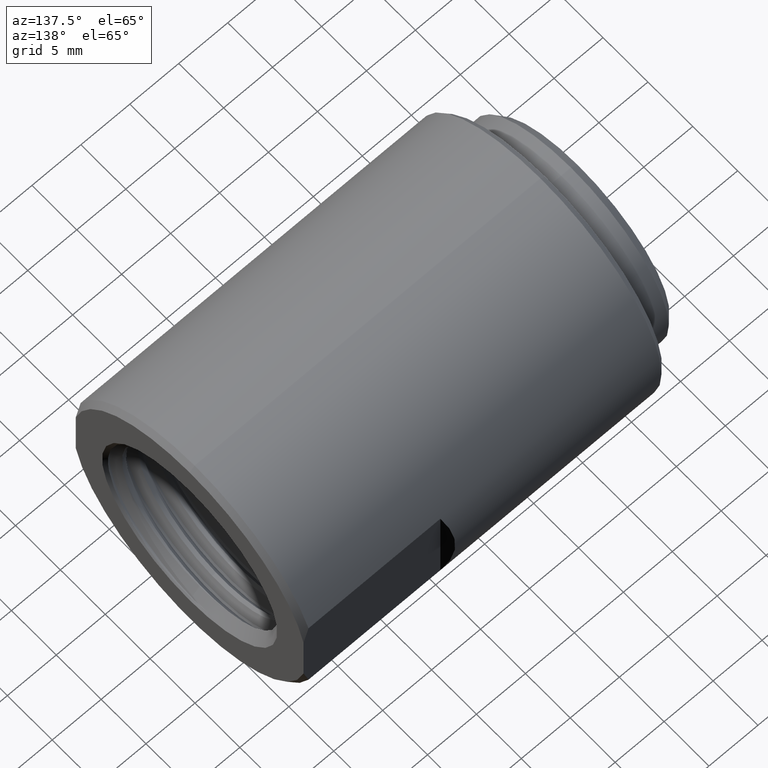
[diagram: clean part render]
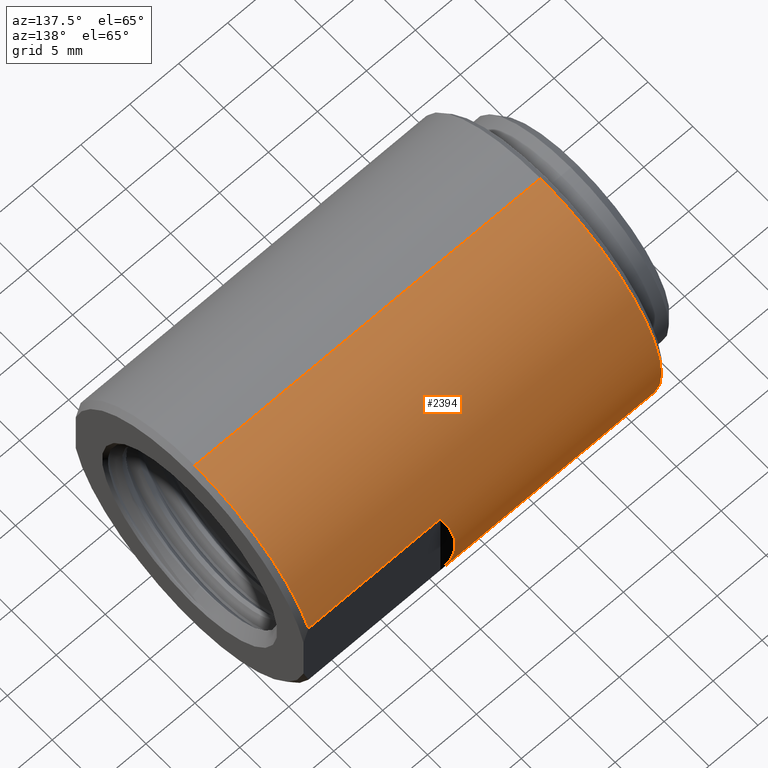
[diagram: same view with one face highlighted and labeled with its STEP entity id]
A machine part, auxiliary view. The second image highlights one B-rep face of the part: STEP entity #2394.
In plain terms, the highlighted cylindrical surface (partial cylindrical patch) has radius 13.495 mm, axis along (-1, -0, -0).
Its self-contained STEP definition (entity closure, byte-faithful):
#75 = ORIENTED_EDGE ( 'NONE', *, *, #7279, .T. ) ;
#164 = VERTEX_POINT ( 'NONE', #6382 ) ;
#750 = LINE ( 'NONE', #1780, #4249 ) ;
#753 = AXIS2_PLACEMENT_3D ( 'NONE', #5389, #2788, #6323 ) ;
#769 = DIRECTION ( 'NONE',  ( -1.000000000000000000, -0.0000000000000000000, -0.0000000000000000000 ) ) ;
#840 = ORIENTED_EDGE ( 'NONE', *, *, #2644, .F. ) ;
#1481 = CIRCLE ( 'NONE', #753, 0.5312999999999999945 ) ;
#1516 = EDGE_CURVE ( 'NONE', #4559, #11055, #3818, .T. ) ;
#1608 = CARTESIAN_POINT ( 'NONE',  ( 0.6265679012345680698, 0.5422320987654321023, -0.06254587364904090618 ) ) ;
#1678 = EDGE_CURVE ( 'NONE', #4559, #5606, #10662, .T. ) ;
#1780 = CARTESIAN_POINT ( 'NONE',  ( 0.0000000000000000000, 6.506548443869888097E-17, -0.5312999999999999945 ) ) ;
#1915 = CARTESIAN_POINT ( 'NONE',  ( 0.0000000000000000000, 0.0000000000000000000, 0.5312999999999999945 ) ) ;
#2024 = CARTESIAN_POINT ( 'NONE',  ( 0.6689999999999999281, 0.4997999999999999665, 0.1802211141903193592 ) ) ;
#2128 = CARTESIAN_POINT ( 'NONE',  ( 1.199000000000000066, 6.506548443869888097E-17, -0.5312999999999999945 ) ) ;
#2250 = FACE_OUTER_BOUND ( 'NONE', #3867, .T. ) ;
#2263 = VERTEX_POINT ( 'NONE', #10618 ) ;
#2394 = ADVANCED_FACE ( 'NONE', ( #2250 ), #10296, .T. ) ;
#2541 = CARTESIAN_POINT ( 'NONE',  ( 0.6689999999999999281, 0.4997999999999999665, -0.1802211141903193592 ) ) ;
#2635 = CARTESIAN_POINT ( 'NONE',  ( 1.199000000000000066, 0.0000000000000000000, 0.0000000000000000000 ) ) ;
#2644 = EDGE_CURVE ( 'NONE', #164, #5738, #7023, .T. ) ;
#2788 = DIRECTION ( 'NONE',  ( -1.000000000000000000, -0.0000000000000000000, -0.0000000000000000000 ) ) ;
#3202 = CARTESIAN_POINT ( 'NONE',  ( -0.1915000000000000036, 0.0000000000000000000, 0.5312999999999999945 ) ) ;
#3352 = CARTESIAN_POINT ( 'NONE',  ( 0.6265679012345681809, 0.5422320987654319913, 0.06254587364904080904 ) ) ;
#3486 = DIRECTION ( 'NONE',  ( 0.0000000000000000000, 0.0000000000000000000, 1.000000000000000000 ) ) ;
#3494 = ORIENTED_EDGE ( 'NONE', *, *, #1516, .T. ) ;
#3656 = EDGE_CURVE ( 'NONE', #2263, #164, #3724, .T. ) ;
#3724 = LINE ( 'NONE', #9057, #9511 ) ;
#3818 = CIRCLE ( 'NONE', #11209, 0.5312999999999999945 ) ;
#3867 = EDGE_LOOP ( 'NONE', ( #7501, #75, #10873, #8924, #3494, #4109, #840, #10345 ) ) ;
#4010 = VECTOR ( 'NONE', #10717, 39.37007874015748143 ) ;
#4108 = AXIS2_PLACEMENT_3D ( 'NONE', #2635, #6170, #8833 ) ;
#4109 = ORIENTED_EDGE ( 'NONE', *, *, #7608, .F. ) ;
#4249 = VECTOR ( 'NONE', #10644, 39.37007874015748143 ) ;
#4559 = VERTEX_POINT ( 'NONE', #7601 ) ;
#4851 = CARTESIAN_POINT ( 'NONE',  ( -6.206261941969990431E-17, 0.4997999999999999110, 0.1802211141903193592 ) ) ;
#5013 = CARTESIAN_POINT ( 'NONE',  ( 1.199000000000000066, 0.4998000000000000220, 0.1802211141903189984 ) ) ;
#5389 = CARTESIAN_POINT ( 'NONE',  ( -0.1915000000000000036, 0.0000000000000000000, 0.0000000000000000000 ) ) ;
#5606 = VERTEX_POINT ( 'NONE', #3202 ) ;
#5738 = VERTEX_POINT ( 'NONE', #2024 ) ;
#5921 = EDGE_CURVE ( 'NONE', #5606, #9947, #1481, .T. ) ;
#5966 = CARTESIAN_POINT ( 'NONE',  ( 0.6689999999999999281, 0.4997999999999999665, 0.1802211141903193592 ) ) ;
#6170 = DIRECTION ( 'NONE',  ( -1.000000000000000000, -0.0000000000000000000, -0.0000000000000000000 ) ) ;
#6323 = DIRECTION ( 'NONE',  ( 0.0000000000000000000, 0.0000000000000000000, 1.000000000000000000 ) ) ;
#6382 = CARTESIAN_POINT ( 'NONE',  ( 0.6689999999999999281, 0.4997999999999999665, -0.1802211141903193592 ) ) ;
#6884 = DIRECTION ( 'NONE',  ( 0.0000000000000000000, 0.0000000000000000000, 1.000000000000000000 ) ) ;
#6963 = CARTESIAN_POINT ( 'NONE',  ( 1.199000000000000066, 0.0000000000000000000, 0.0000000000000000000 ) ) ;
#7023 =( BOUNDED_CURVE ( )  B_SPLINE_CURVE ( 3, ( #2541, #1608, #3352, #5966 ),
 .UNSPECIFIED., .F., .F. ) 
 B_SPLINE_CURVE_WITH_KNOTS ( ( 4, 4 ),
 ( 5.937110646107950807, 6.629259968251221657 ),
 .UNSPECIFIED. ) 
 CURVE ( )  GEOMETRIC_REPRESENTATION_ITEM ( )  RATIONAL_B_SPLINE_CURVE ( ( 1.000000000000000000, 0.9604743083003951520, 0.9604743083003951520, 1.000000000000000000 ) ) 
 REPRESENTATION_ITEM ( '' )  );
#7279 = EDGE_CURVE ( 'NONE', #7681, #9947, #750, .T. ) ;
#7501 = ORIENTED_EDGE ( 'NONE', *, *, #11283, .T. ) ;
#7601 = CARTESIAN_POINT ( 'NONE',  ( 1.199000000000000066, 0.0000000000000000000, 0.5312999999999999945 ) ) ;
#7608 = EDGE_CURVE ( 'NONE', #5738, #11055, #8339, .T. ) ;
#7638 = DIRECTION ( 'NONE',  ( 1.000000000000000000, 0.0000000000000000000, 0.0000000000000000000 ) ) ;
#7681 = VERTEX_POINT ( 'NONE', #2128 ) ;
#7699 = DIRECTION ( 'NONE',  ( -1.000000000000000000, -0.0000000000000000000, -0.0000000000000000000 ) ) ;
#8325 = VECTOR ( 'NONE', #7638, 39.37007874015748143 ) ;
#8339 = LINE ( 'NONE', #4851, #8325 ) ;
#8458 = CARTESIAN_POINT ( 'NONE',  ( 0.0000000000000000000, 0.0000000000000000000, 0.0000000000000000000 ) ) ;
#8833 = DIRECTION ( 'NONE',  ( 0.0000000000000000000, 0.0000000000000000000, 1.000000000000000000 ) ) ;
#8924 = ORIENTED_EDGE ( 'NONE', *, *, #1678, .F. ) ;
#9057 = CARTESIAN_POINT ( 'NONE',  ( -6.206261941969990431E-17, 0.4997999999999999110, -0.1802211141903193592 ) ) ;
#9511 = VECTOR ( 'NONE', #10956, 39.37007874015748143 ) ;
#9947 = VERTEX_POINT ( 'NONE', #9978 ) ;
#9978 = CARTESIAN_POINT ( 'NONE',  ( -0.1915000000000000036, 6.506548443869888097E-17, -0.5312999999999999945 ) ) ;
#10204 = CIRCLE ( 'NONE', #4108, 0.5312999999999999945 ) ;
#10296 = CYLINDRICAL_SURFACE ( 'NONE', #10305, 0.5312999999999999945 ) ;
#10305 = AXIS2_PLACEMENT_3D ( 'NONE', #8458, #7699, #6884 ) ;
#10345 = ORIENTED_EDGE ( 'NONE', *, *, #3656, .F. ) ;
#10618 = CARTESIAN_POINT ( 'NONE',  ( 1.199000000000000066, 0.4998000000000000220, -0.1802211141903189984 ) ) ;
#10644 = DIRECTION ( 'NONE',  ( -1.000000000000000000, -0.0000000000000000000, -0.0000000000000000000 ) ) ;
#10662 = LINE ( 'NONE', #1915, #4010 ) ;
#10717 = DIRECTION ( 'NONE',  ( -1.000000000000000000, -0.0000000000000000000, -0.0000000000000000000 ) ) ;
#10873 = ORIENTED_EDGE ( 'NONE', *, *, #5921, .F. ) ;
#10956 = DIRECTION ( 'NONE',  ( -1.000000000000000000, -0.0000000000000000000, -0.0000000000000000000 ) ) ;
#11055 = VERTEX_POINT ( 'NONE', #5013 ) ;
#11209 = AXIS2_PLACEMENT_3D ( 'NONE', #6963, #769, #3486 ) ;
#11283 = EDGE_CURVE ( 'NONE', #2263, #7681, #10204, .T. ) ;